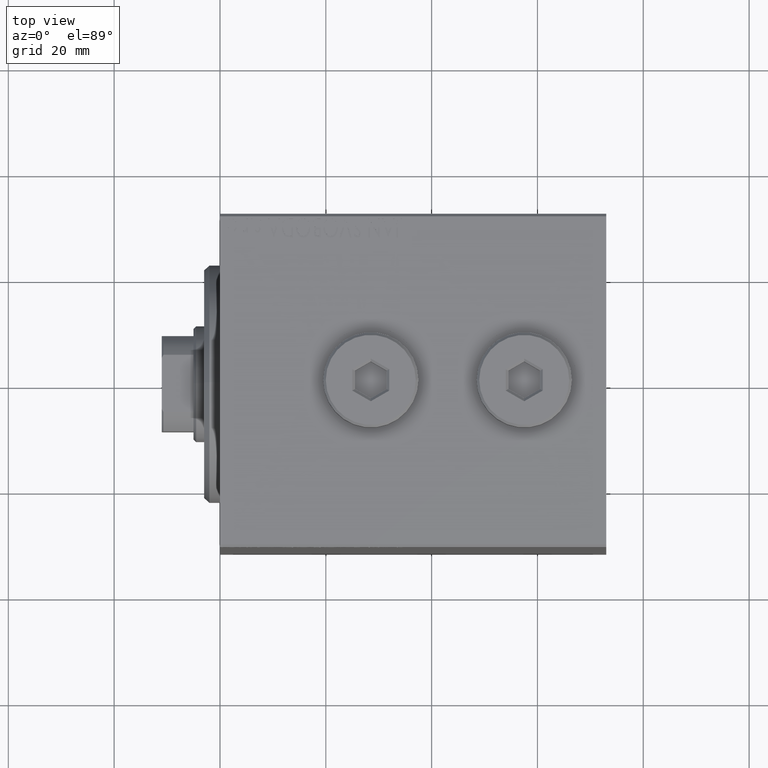
[diagram: clean part render]
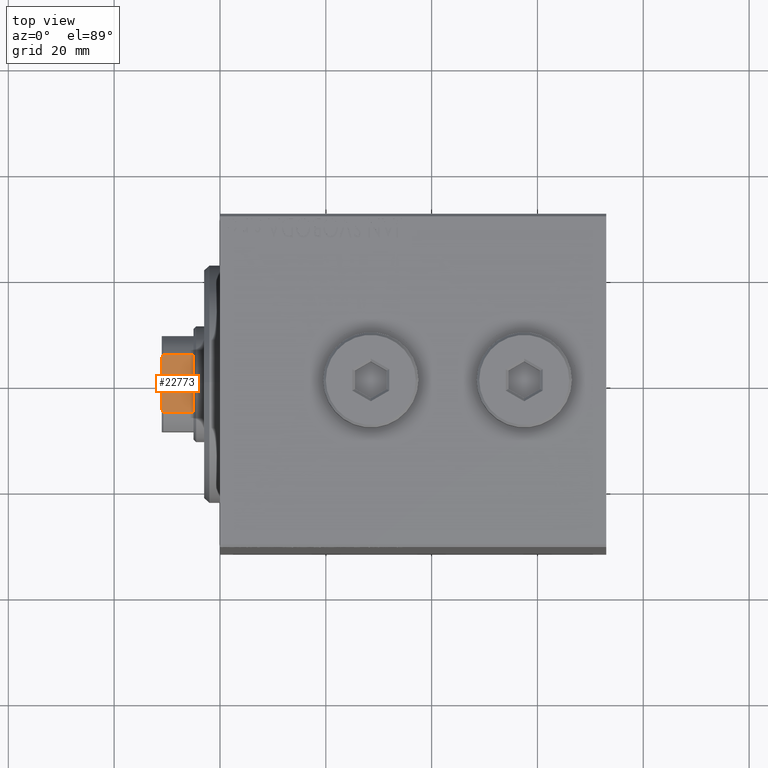
[diagram: same view with one face highlighted and labeled with its STEP entity id]
A machine part, top view. The second image highlights one B-rep face of the part: STEP entity #22773.
In plain terms, the highlighted planar face has unit normal (-0, -0, -1).
Its self-contained STEP definition (entity closure, byte-faithful):
#100 = VECTOR ( 'NONE', #3790, 1000.000000000000000 ) ;
#796 = VERTEX_POINT ( 'NONE', #16516 ) ;
#1757 = PLANE ( 'NONE',  #18413 ) ;
#2684 = EDGE_CURVE ( 'NONE', #25538, #34539, #20907, .T. ) ;
#3790 = DIRECTION ( 'NONE',  ( -0.000000000000000000, -0.000000000000000000, 1.000000000000000000 ) ) ;
#4396 = ORIENTED_EDGE ( 'NONE', *, *, #39064, .F. ) ;
#5263 = EDGE_CURVE ( 'NONE', #796, #14885, #24000, .T. ) ;
#5804 = CARTESIAN_POINT ( 'NONE',  ( 8.999999999999996447, -5.408326913195990571, 56.00000000000000000 ) ) ;
#5884 = CARTESIAN_POINT ( 'NONE',  ( 8.999999999999998224, 5.207299490555477917, 61.80354495430067630 ) ) ;
#6181 = CARTESIAN_POINT ( 'NONE',  ( 8.999999999999998224, 8.999999999999998224, 55.99999999999999289 ) ) ;
#6422 = CARTESIAN_POINT ( 'NONE',  ( 9.000000000000001776, -5.004607318780307068, 61.90371420292691340 ) ) ;
#7145 = ORIENTED_EDGE ( 'NONE', *, *, #2684, .T. ) ;
#9334 = CARTESIAN_POINT ( 'NONE',  ( 8.999999999999998224, 5.408326913195988794, 61.69999999999999574 ) ) ;
#10401 = VECTOR ( 'NONE', #16072, 1000.000000000000000 ) ;
#10464 = LINE ( 'NONE', #24497, #100 ) ;
#11204 = VECTOR ( 'NONE', #43236, 1000.000000000000000 ) ;
#12520 = DIRECTION ( 'NONE',  ( 1.927470528863119049E-16, -1.000000000000000000, 0.000000000000000000 ) ) ;
#13124 = CARTESIAN_POINT ( 'NONE',  ( 8.999999999999998224, 8.999999999999998224, 61.99999999999999289 ) ) ;
#14885 = VERTEX_POINT ( 'NONE', #42411 ) ;
#15750 = CARTESIAN_POINT ( 'NONE',  ( 8.999999999999998224, 8.999999999999998224, 61.99999999999999289 ) ) ;
#16072 = DIRECTION ( 'NONE',  ( -1.927470528863119049E-16, 1.000000000000000000, -0.000000000000000000 ) ) ;
#16516 = CARTESIAN_POINT ( 'NONE',  ( 9.000000000000001776, -4.800000000000007816, 61.99999999999999289 ) ) ;
#16736 = LINE ( 'NONE', #6181, #10401 ) ;
#18413 = AXIS2_PLACEMENT_3D ( 'NONE', #15750, #26574, #12520 ) ;
#19574 = VERTEX_POINT ( 'NONE', #38106 ) ;
#19582 = LINE ( 'NONE', #13124, #22884 ) ;
#19899 = CARTESIAN_POINT ( 'NONE',  ( 8.999999999999998224, 5.004607318780313285, 61.90371420292691340 ) ) ;
#20798 = EDGE_LOOP ( 'NONE', ( #29685, #7145, #4396, #29382, #29139, #36034 ) ) ;
#20907 = B_SPLINE_CURVE_WITH_KNOTS ( 'NONE', 3,
 ( #9334, #5884, #19899, #41687 ),
 .UNSPECIFIED., .F., .F.,
 ( 4, 4 ),
 ( 0.000000000000000000, 0.0006782784334759169855 ),
 .UNSPECIFIED. ) ;
#21125 = CARTESIAN_POINT ( 'NONE',  ( 8.999999999999996447, -5.408326913195990571, 61.69999999999999574 ) ) ;
#22773 = ADVANCED_FACE ( 'NONE', ( #33214 ), #1757, .F. ) ;
#22884 = VECTOR ( 'NONE', #37487, 1000.000000000000000 ) ;
#24000 = B_SPLINE_CURVE_WITH_KNOTS ( 'NONE', 3,
 ( #38358, #6422, #41128, #21125 ),
 .UNSPECIFIED., .F., .F.,
 ( 4, 4 ),
 ( 0.000000000000000000, 0.0006782784334759217560 ),
 .UNSPECIFIED. ) ;
#24497 = CARTESIAN_POINT ( 'NONE',  ( 8.999999999999998224, 5.408326913195988794, -0.001000000000001000089 ) ) ;
#25006 = CARTESIAN_POINT ( 'NONE',  ( 8.999999999999998224, 4.800000000000010481, 61.99999999999999289 ) ) ;
#25538 = VERTEX_POINT ( 'NONE', #31672 ) ;
#26574 = DIRECTION ( 'NONE',  ( -1.000000000000000000, -1.927470528863119049E-16, 0.000000000000000000 ) ) ;
#29004 = LINE ( 'NONE', #32211, #11204 ) ;
#29139 = ORIENTED_EDGE ( 'NONE', *, *, #42646, .F. ) ;
#29382 = ORIENTED_EDGE ( 'NONE', *, *, #5263, .T. ) ;
#29685 = ORIENTED_EDGE ( 'NONE', *, *, #33076, .T. ) ;
#31672 = CARTESIAN_POINT ( 'NONE',  ( 8.999999999999998224, 5.408326913195988794, 61.69999999999999574 ) ) ;
#32211 = CARTESIAN_POINT ( 'NONE',  ( 8.999999999999996447, -5.408326913195990571, -0.001000000000001000089 ) ) ;
#33076 = EDGE_CURVE ( 'NONE', #19574, #25538, #10464, .T. ) ;
#33214 = FACE_OUTER_BOUND ( 'NONE', #20798, .T. ) ;
#34539 = VERTEX_POINT ( 'NONE', #25006 ) ;
#35379 = EDGE_CURVE ( 'NONE', #44141, #19574, #16736, .T. ) ;
#36034 = ORIENTED_EDGE ( 'NONE', *, *, #35379, .T. ) ;
#37487 = DIRECTION ( 'NONE',  ( -1.927470528863119049E-16, 1.000000000000000000, -0.000000000000000000 ) ) ;
#38106 = CARTESIAN_POINT ( 'NONE',  ( 8.999999999999998224, 5.408326913195988794, 56.00000000000000000 ) ) ;
#38358 = CARTESIAN_POINT ( 'NONE',  ( 9.000000000000001776, -4.800000000000007816, 61.99999999999999289 ) ) ;
#39064 = EDGE_CURVE ( 'NONE', #796, #34539, #19582, .T. ) ;
#41128 = CARTESIAN_POINT ( 'NONE',  ( 9.000000000000001776, -5.207299490555477917, 61.80354495430067630 ) ) ;
#41687 = CARTESIAN_POINT ( 'NONE',  ( 8.999999999999998224, 4.800000000000010481, 61.99999999999999289 ) ) ;
#42411 = CARTESIAN_POINT ( 'NONE',  ( 8.999999999999996447, -5.408326913195990571, 61.69999999999999574 ) ) ;
#42646 = EDGE_CURVE ( 'NONE', #44141, #14885, #29004, .T. ) ;
#43236 = DIRECTION ( 'NONE',  ( -0.000000000000000000, -0.000000000000000000, 1.000000000000000000 ) ) ;
#44141 = VERTEX_POINT ( 'NONE', #5804 ) ;